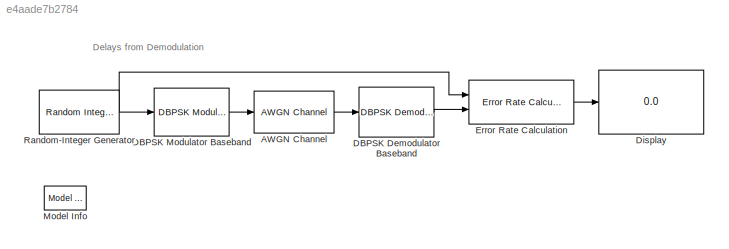
MODEL slx_e4aade7b2784
KIND model
BLOCK [Reference] AWGN Channel  REF=commchan3/AWGN
Channel
  EbNodB = 10
  EsNodB = 4
  InputProcessing = Columns as channels (frame based)
  Ports = [1, 1]
  Ps = 1
  SNRdB = 10
  SourceBlock = commchan3/AWGN\nChannel
  SourceType = AWGN Channel
  Tsym = 1
  UserDataPersistent = on
  bitsPerSym = 1
  noiseMode = Signal to noise ratio  (Es/No)
  seed = 1237
  variance = 1
BLOCK [Reference] DBPSK Demodulator Baseband  REF=commdigbbndpm3/DBPSK
Demodulator
Baseband
  Ph = 0
  Ports = [1, 1]
  SourceBlock = commdigbbndpm3/DBPSK\nDemodulator\nBaseband
  SourceType = DBPSK Demodulator Baseband
  outDtype = double
BLOCK [Reference] DBPSK Modulator Baseband  REF=commdigbbndpm3/DBPSK
Modulator
Baseband
  Ph = 0
  Ports = [1, 1]
  SourceBlock = commdigbbndpm3/DBPSK\nModulator\nBaseband
  SourceType = DBPSK Modulator Baseband
  outDtype = double
BLOCK [Display] Display
  Decimation = 1
  Ports = [1]
BLOCK [Reference] Error Rate Calculation  REF=commsink2/Error Rate
Calculation
  N = 0
  PMode = Port
  Ports = [2, 1]
  RsMode2 = off
  SourceBlock = commsink2/Error Rate\nCalculation
  SourceType = Error Rate Calculation
  WsName = ErrorVec
  cp_mode = Entire frame
  maxBits = 1e6
  numErr = 100
  st_delay = 0
  stop = off
  subframe = []
BLOCK [Reference] Model Info  REF=simulink/Model-Wide
Utilities/Model Info
  BlockCM = none
  DisplayStringWithTags = Info
  Frame = on
  HorizontalTextAlignment = Center
  InitialBlockCM = None
  LeftAlignmentValue = 0.5
  MaskDisplayString = Info
  Ports = []
  SourceBlock = simulink/Model-Wide\nUtilities/Model Info
  SourceBlockDiagram = doc_modulation_delay
  SourceType = CMBlock
  TagMaxNumber = 20
BLOCK [Reference] Random-Integer Generator  REF=commrandsrc2/Random Integer
Generator
  Ports = [0, 1]
  SourceBlock = commrandsrc2/Random Integer\nGenerator
  SourceType = Random Integer Generator
  Ts = 1
  frameBased = off
  mul = 2
  orient = off
  outDataType = double
  sampPerFrame = 1
  seed = 10711
ANNOTATION (root): Delays from Demodulation
LINE AWGN Channel:1 -> DBPSK Demodulator Baseband:1
LINE DBPSK Demodulator Baseband:1 -> Error Rate Calculation:2
LINE DBPSK Modulator Baseband:1 -> AWGN Channel:1
LINE Error Rate Calculation:1 -> Display:1
NET Random-Integer Generator:1 -> DBPSK Modulator Baseband:1, Error Rate Calculation:1
note: NET lines group one-source signal fan-out (src -> all destinations, sorted); 1:1 wires keep LINE
